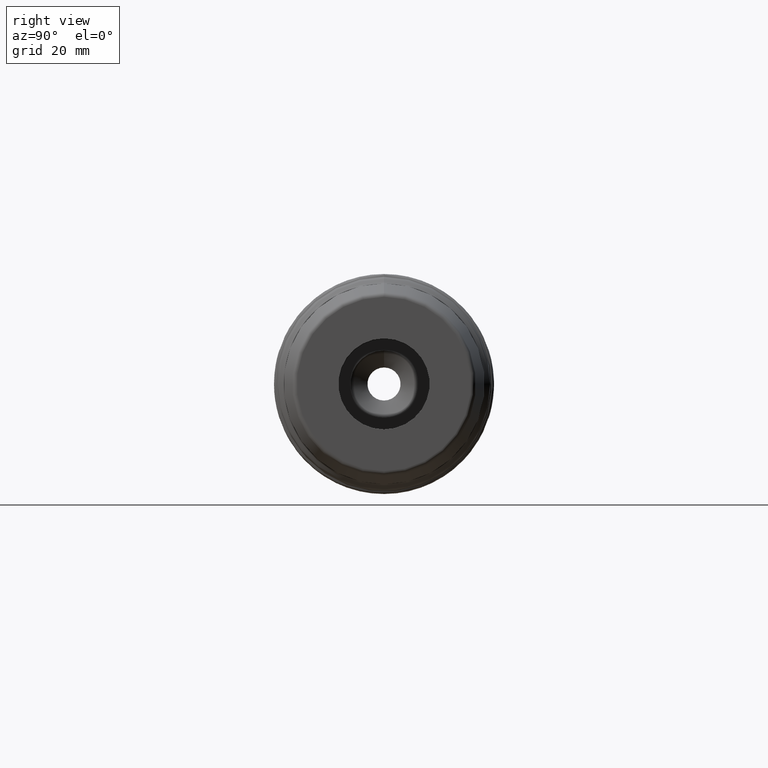
[diagram: clean part render]
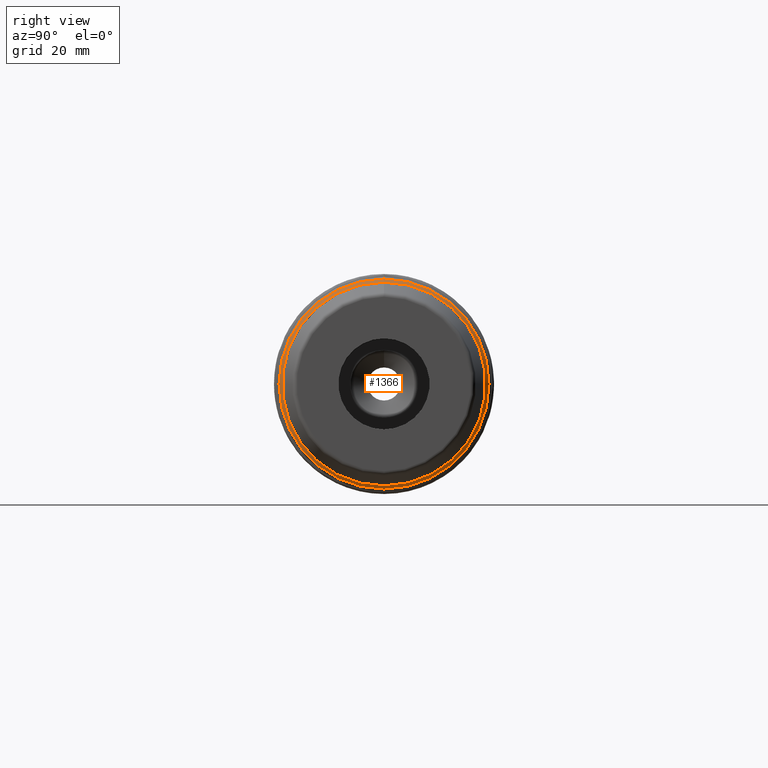
[diagram: same view with one face highlighted and labeled with its STEP entity id]
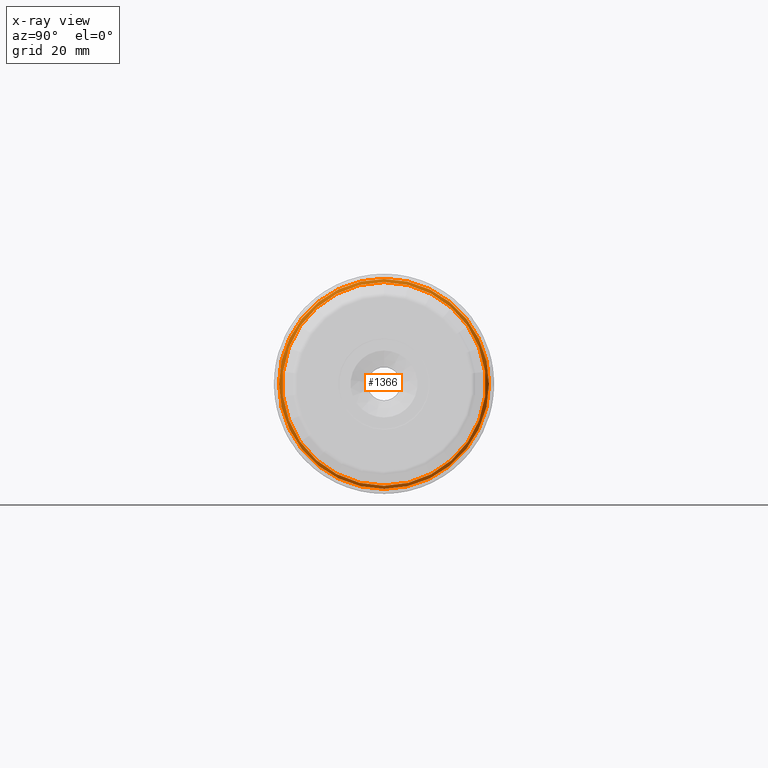
[diagram: x-ray of the same camera — body ghosted, the highlighted face saturated]
A machine part, right view. The second image highlights one B-rep face of the part: STEP entity #1366.
The next image is the same camera in x-ray: the body ghosted, the highlighted face saturated — about 0% of this face is hidden behind the body in this view.
In plain terms, the highlighted conical surface has half-angle 45 deg.
Its self-contained STEP definition (entity closure, byte-faithful):
#97=CONICAL_SURFACE('',#1491,21.625,0.785398163397448);
#121=FACE_OUTER_BOUND('',#198,.T.);
#198=EDGE_LOOP('',(#952,#953,#954,#955,#956,#957));
#275=LINE('',#2160,#345);
#345=VECTOR('',#1729,21.625);
#432=CIRCLE('',#1486,21.2928932188135);
#436=CIRCLE('',#1490,21.2928932188135);
#437=CIRCLE('',#1492,21.9571067811865);
#438=CIRCLE('',#1493,21.9571067811865);
#543=VERTEX_POINT('',#2149);
#544=VERTEX_POINT('',#2150);
#547=VERTEX_POINT('',#2159);
#548=VERTEX_POINT('',#2161);
#702=EDGE_CURVE('',#543,#544,#432,.T.);
#706=EDGE_CURVE('',#544,#543,#436,.T.);
#707=EDGE_CURVE('',#544,#547,#275,.T.);
#708=EDGE_CURVE('',#548,#547,#437,.T.);
#709=EDGE_CURVE('',#547,#548,#438,.T.);
#952=ORIENTED_EDGE('',*,*,#702,.F.);
#953=ORIENTED_EDGE('',*,*,#706,.F.);
#954=ORIENTED_EDGE('',*,*,#707,.T.);
#955=ORIENTED_EDGE('',*,*,#708,.F.);
#956=ORIENTED_EDGE('',*,*,#709,.F.);
#957=ORIENTED_EDGE('',*,*,#707,.F.);
#1366=ADVANCED_FACE('',(#121),#97,.T.);
#1486=AXIS2_PLACEMENT_3D('',#2151,#1717,#1718);
#1490=AXIS2_PLACEMENT_3D('',#2157,#1725,#1726);
#1491=AXIS2_PLACEMENT_3D('',#2158,#1727,#1728);
#1492=AXIS2_PLACEMENT_3D('',#2162,#1730,#1731);
#1493=AXIS2_PLACEMENT_3D('',#2163,#1732,#1733);
#1717=DIRECTION('center_axis',(1.,0.,0.));
#1718=DIRECTION('ref_axis',(0.,2.31550527538224E-32,1.));
#1725=DIRECTION('center_axis',(1.,0.,0.));
#1726=DIRECTION('ref_axis',(0.,2.31550527538224E-32,1.));
#1727=DIRECTION('center_axis',(-1.,0.,0.));
#1728=DIRECTION('ref_axis',(0.,0.,-1.));
#1729=DIRECTION('',(-0.707106781186547,-8.65956056235494E-17,0.707106781186548));
#1730=DIRECTION('center_axis',(-1.,0.,0.));
#1731=DIRECTION('ref_axis',(0.,0.,1.));
#1732=DIRECTION('center_axis',(-1.,0.,0.));
#1733=DIRECTION('ref_axis',(0.,0.,1.));
#2149=CARTESIAN_POINT('',(40.9571067811866,-4.93038065763132E-31,-21.2928932188135));
#2150=CARTESIAN_POINT('',(40.9571067811866,-2.60762735250063E-15,21.2928932188135));
#2151=CARTESIAN_POINT('Origin',(40.9571067811866,-2.60762735250063E-15,
0.));
#2157=CARTESIAN_POINT('Origin',(40.9571067811866,-2.60762735250063E-15,
0.));
#2158=CARTESIAN_POINT('Origin',(40.625,0.,0.));
#2159=CARTESIAN_POINT('',(40.2928932188134,-2.68897005381168E-15,21.9571067811866));
#2160=CARTESIAN_POINT('',(40.625,-2.64829870315615E-15,21.625));
#2161=CARTESIAN_POINT('',(40.2928932188134,-5.37794010762335E-15,-21.9571067811865));
#2162=CARTESIAN_POINT('Origin',(40.2928932188134,-2.68897005381168E-15,
0.));
#2163=CARTESIAN_POINT('Origin',(40.2928932188134,-2.68897005381168E-15,
0.));